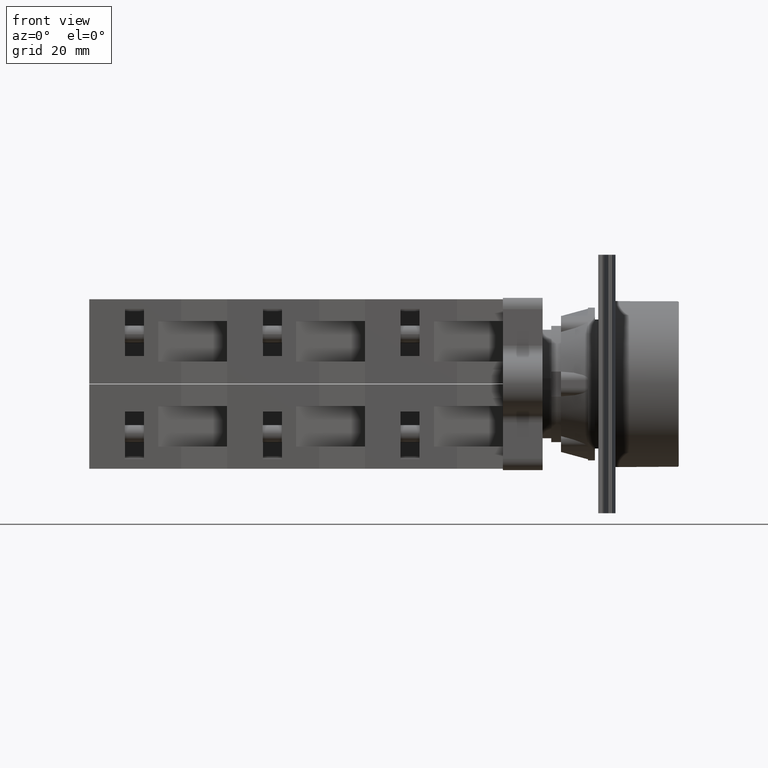
[diagram: clean part render]
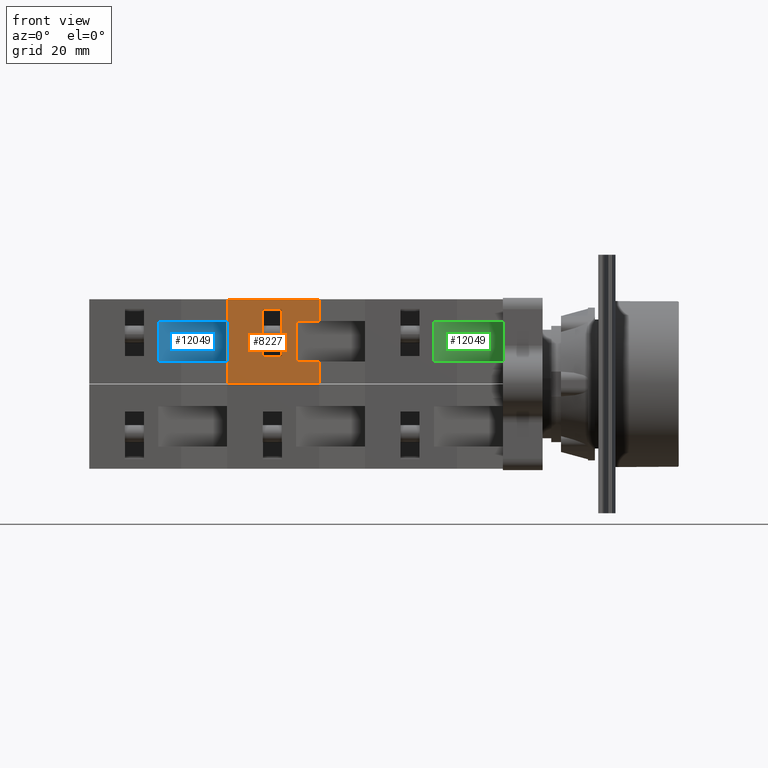
[diagram: same view with three faces highlighted in distinct colors, each labeled with its STEP entity id]
A machine part, front view with three faces highlighted in distinct colors.
Their STEP definitions:

[orange] entity #8227 — the highlighted planar face has unit normal (-0, -1, -0).
#8048=CARTESIAN_POINT('',(-44.936741828918457,7.797073323279618,10.850000000000000));
#8049=VERTEX_POINT('',#8048);
#8058=CARTESIAN_POINT('',(-44.936741828918457,11.797073323279610,10.850000000000000));
#8059=VERTEX_POINT('',#8058);
#8060=CARTESIAN_POINT('',(-44.936741828918457,11.797073323279610,10.850000000000000));
#8061=DIRECTION('',(0.0,-1.0,0.0));
#8062=VECTOR('',#8061,3.999999999999992);
#8063=LINE('',#8060,#8062);
#8064=EDGE_CURVE('',#8059,#8049,#8063,.T.);
#8088=CARTESIAN_POINT('',(-44.936741828918457,11.797073323279610,3.850000000000001));
#8089=VERTEX_POINT('',#8088);
#8105=CARTESIAN_POINT('',(-44.936741828918457,11.797073323279610,3.850000000000001));
#8106=DIRECTION('',(0.0,0.0,1.0));
#8107=VECTOR('',#8106,6.999999999999999);
#8108=LINE('',#8105,#8107);
#8109=EDGE_CURVE('',#8089,#8059,#8108,.T.);
#8121=CARTESIAN_POINT('',(-44.936741828918457,7.797073323279618,3.850000000000000));
#8122=VERTEX_POINT('',#8121);
#8136=CARTESIAN_POINT('',(-44.936741828918457,7.797073323279618,3.850000000000000));
#8137=DIRECTION('',(0.0,1.0,0.0));
#8138=VECTOR('',#8137,3.999999999999992);
#8139=LINE('',#8136,#8138);
#8140=EDGE_CURVE('',#8122,#8089,#8139,.T.);
#8145=CARTESIAN_POINT('',(-44.936741828918457,7.797073323279626,0.0));
#8146=DIRECTION('',(-1.0,0.0,0.0));
#8147=DIRECTION('',(0.0,0.0,1.0));
#8148=AXIS2_PLACEMENT_3D('',#8145,#8146,#8147);
#8149=PLANE('',#8148);
#8150=ORIENTED_EDGE('',*,*,#8140,.T.);
#8151=ORIENTED_EDGE('',*,*,#8109,.T.);
#8152=ORIENTED_EDGE('',*,*,#8064,.T.);
#8153=CARTESIAN_POINT('',(-44.936741828918457,7.797073323279626,14.699999999999999));
#8154=VERTEX_POINT('',#8153);
#8155=CARTESIAN_POINT('',(-44.936741828918457,7.797073323279618,10.850000000000000));
#8156=DIRECTION('',(0.0,0.0,1.0));
#8157=VECTOR('',#8156,3.850000000000000);
#8158=LINE('',#8155,#8157);
#8159=EDGE_CURVE('',#8049,#8154,#8158,.T.);
#8160=ORIENTED_EDGE('',*,*,#8159,.T.);
#8161=CARTESIAN_POINT('',(-44.936741828918471,23.797073323279623,14.699999999999999));
#8162=VERTEX_POINT('',#8161);
#8163=CARTESIAN_POINT('',(-44.936741828918457,7.797073323279626,14.699999999999999));
#8164=DIRECTION('',(0.0,1.0,0.0));
#8165=VECTOR('',#8164,15.999999999999996);
#8166=LINE('',#8163,#8165);
#8167=EDGE_CURVE('',#8154,#8162,#8166,.T.);
#8168=ORIENTED_EDGE('',*,*,#8167,.T.);
#8169=CARTESIAN_POINT('',(-44.936741828918471,23.797073323279623,0.0));
#8170=VERTEX_POINT('',#8169);
#8171=CARTESIAN_POINT('',(-44.936741828918471,23.797073323279623,0.0));
#8172=DIRECTION('',(0.0,0.0,1.0));
#8173=VECTOR('',#8172,14.699999999999999);
#8174=LINE('',#8171,#8173);
#8175=EDGE_CURVE('',#8170,#8162,#8174,.T.);
#8176=ORIENTED_EDGE('',*,*,#8175,.F.);
#8177=CARTESIAN_POINT('',(-44.936741828918457,7.797073323279626,0.0));
#8178=VERTEX_POINT('',#8177);
#8179=CARTESIAN_POINT('',(-44.936741828918457,7.797073323279626,0.0));
#8180=DIRECTION('',(0.0,1.0,0.0));
#8181=VECTOR('',#8180,15.999999999999996);
#8182=LINE('',#8179,#8181);
#8183=EDGE_CURVE('',#8178,#8170,#8182,.T.);
#8184=ORIENTED_EDGE('',*,*,#8183,.F.);
#8185=CARTESIAN_POINT('',(-44.936741828918457,7.797073323279626,0.0));
#8186=DIRECTION('',(0.0,0.0,1.0));
#8187=VECTOR('',#8186,3.850000000000000);
#8188=LINE('',#8185,#8187);
#8189=EDGE_CURVE('',#8178,#8122,#8188,.T.);
#8190=ORIENTED_EDGE('',*,*,#8189,.T.);
#8191=EDGE_LOOP('',(#8150,#8151,#8152,#8160,#8168,#8176,#8184,#8190));
#8192=FACE_OUTER_BOUND('',#8191,.T.);
#8193=CARTESIAN_POINT('',(-44.936741828918457,14.297073323279621,4.800000000000002));
#8194=VERTEX_POINT('',#8193);
#8195=CARTESIAN_POINT('',(-44.936741828918471,17.597073323279623,4.800000000000001));
#8196=VERTEX_POINT('',#8195);
#8197=CARTESIAN_POINT('',(-44.936741828918457,14.297073323279621,4.800000000000002));
#8198=DIRECTION('',(0.0,1.0,0.0));
#8199=VECTOR('',#8198,3.300000000000003);
#8200=LINE('',#8197,#8199);
#8201=EDGE_CURVE('',#8194,#8196,#8200,.T.);
#8202=ORIENTED_EDGE('',*,*,#8201,.T.);
#8203=CARTESIAN_POINT('',(-44.936741828918471,17.597073323279623,13.0));
#8204=VERTEX_POINT('',#8203);
#8205=CARTESIAN_POINT('',(-44.936741828918471,17.597073323279623,4.800000000000001));
#8206=DIRECTION('',(0.0,0.0,1.0));
#8207=VECTOR('',#8206,8.199999999999999);
#8208=LINE('',#8205,#8207);
#8209=EDGE_CURVE('',#8196,#8204,#8208,.T.);
#8210=ORIENTED_EDGE('',*,*,#8209,.T.);
#8211=CARTESIAN_POINT('',(-44.936741828918457,14.297073323279623,13.0));
#8212=VERTEX_POINT('',#8211);
#8213=CARTESIAN_POINT('',(-44.936741828918471,17.597073323279623,13.0));
#8214=DIRECTION('',(0.0,-1.0,0.0));
#8215=VECTOR('',#8214,3.300000000000001);
#8216=LINE('',#8213,#8215);
#8217=EDGE_CURVE('',#8204,#8212,#8216,.T.);
#8218=ORIENTED_EDGE('',*,*,#8217,.T.);
#8219=CARTESIAN_POINT('',(-44.936741828918457,14.297073323279623,13.0));
#8220=DIRECTION('',(0.0,0.0,-1.0));
#8221=VECTOR('',#8220,8.199999999999999);
#8222=LINE('',#8219,#8221);
#8223=EDGE_CURVE('',#8212,#8194,#8222,.T.);
#8224=ORIENTED_EDGE('',*,*,#8223,.T.);
#8225=EDGE_LOOP('',(#8202,#8210,#8218,#8224));
#8226=FACE_BOUND('',#8225,.T.);
#8227=ADVANCED_FACE('',(#8192,#8226),#8149,.T.);

[blue] entity #12049 — the highlighted face is a freeform B-spline surface patch.
#11994=CARTESIAN_POINT('',(-44.936741828918457,11.797073323279610,10.850000000000000));
#11995=VERTEX_POINT('',#11994);
#12002=CARTESIAN_POINT('',(-35.936741828918450,-0.202926676720384,10.850000000000000));
#12003=VERTEX_POINT('',#12002);
#12004=CARTESIAN_POINT('',(-35.936741828918450,-0.202926676720384,10.850000000000000));
#12005=DIRECTION('',(-0.600000000000000,0.800000000000000,0.0));
#12006=VECTOR('',#12005,15.0);
#12007=LINE('',#12004,#12006);
#12008=EDGE_CURVE('',#12003,#11995,#12007,.T.);
#12019=CARTESIAN_POINT('',(-44.936741828918464,11.797073323279616,3.850000000000000));
#12020=CARTESIAN_POINT('',(-44.936741828918464,11.797073323279616,10.850000000000001));
#12021=CARTESIAN_POINT('',(-35.936741828918443,-0.202926676720384,3.850000000000000));
#12022=CARTESIAN_POINT('',(-35.936741828918450,-0.202926676720384,10.850000000000001));
#12023=B_SPLINE_SURFACE_WITH_KNOTS('',1,1,((#12019,#12021),(#12020,#12022)),.UNSPECIFIED.,.F.,.F.,.U.,(2,2),(2,2),(0.0,7.000000000000002),(0.0,15.000000000000012),.UNSPECIFIED.);
#12024=CARTESIAN_POINT('',(-44.936741828918457,11.797073323279610,3.850000000000001));
#12025=VERTEX_POINT('',#12024);
#12026=CARTESIAN_POINT('',(-35.936741828918450,-0.202926676720384,3.850000000000001));
#12027=VERTEX_POINT('',#12026);
#12028=CARTESIAN_POINT('',(-44.936741828918457,11.797073323279610,3.850000000000001));
#12029=DIRECTION('',(0.600000000000000,-0.800000000000000,0.0));
#12030=VECTOR('',#12029,15.0);
#12031=LINE('',#12028,#12030);
#12032=EDGE_CURVE('',#12025,#12027,#12031,.T.);
#12033=ORIENTED_EDGE('',*,*,#12032,.T.);
#12034=CARTESIAN_POINT('',(-35.936741828918450,-0.202926676720384,10.850000000000000));
#12035=DIRECTION('',(0.0,0.0,-1.0));
#12036=VECTOR('',#12035,6.999999999999999);
#12037=LINE('',#12034,#12036);
#12038=EDGE_CURVE('',#12003,#12027,#12037,.T.);
#12039=ORIENTED_EDGE('',*,*,#12038,.F.);
#12040=ORIENTED_EDGE('',*,*,#12008,.T.);
#12041=CARTESIAN_POINT('',(-44.936741828918457,11.797073323279610,3.850000000000001));
#12042=DIRECTION('',(0.0,0.0,1.0));
#12043=VECTOR('',#12042,6.999999999999999);
#12044=LINE('',#12041,#12043);
#12045=EDGE_CURVE('',#12025,#11995,#12044,.T.);
#12046=ORIENTED_EDGE('',*,*,#12045,.F.);
#12047=EDGE_LOOP('',(#12033,#12039,#12040,#12046));
#12048=FACE_OUTER_BOUND('',#12047,.T.);
#12049=ADVANCED_FACE('',(#12048),#12023,.F.);

[green] entity #12049 — the highlighted face is a freeform B-spline surface patch.
#11994=CARTESIAN_POINT('',(-44.936741828918457,11.797073323279610,10.850000000000000));
#11995=VERTEX_POINT('',#11994);
#12002=CARTESIAN_POINT('',(-35.936741828918450,-0.202926676720384,10.850000000000000));
#12003=VERTEX_POINT('',#12002);
#12004=CARTESIAN_POINT('',(-35.936741828918450,-0.202926676720384,10.850000000000000));
#12005=DIRECTION('',(-0.600000000000000,0.800000000000000,0.0));
#12006=VECTOR('',#12005,15.0);
#12007=LINE('',#12004,#12006);
#12008=EDGE_CURVE('',#12003,#11995,#12007,.T.);
#12019=CARTESIAN_POINT('',(-44.936741828918464,11.797073323279616,3.850000000000000));
#12020=CARTESIAN_POINT('',(-44.936741828918464,11.797073323279616,10.850000000000001));
#12021=CARTESIAN_POINT('',(-35.936741828918443,-0.202926676720384,3.850000000000000));
#12022=CARTESIAN_POINT('',(-35.936741828918450,-0.202926676720384,10.850000000000001));
#12023=B_SPLINE_SURFACE_WITH_KNOTS('',1,1,((#12019,#12021),(#12020,#12022)),.UNSPECIFIED.,.F.,.F.,.U.,(2,2),(2,2),(0.0,7.000000000000002),(0.0,15.000000000000012),.UNSPECIFIED.);
#12024=CARTESIAN_POINT('',(-44.936741828918457,11.797073323279610,3.850000000000001));
#12025=VERTEX_POINT('',#12024);
#12026=CARTESIAN_POINT('',(-35.936741828918450,-0.202926676720384,3.850000000000001));
#12027=VERTEX_POINT('',#12026);
#12028=CARTESIAN_POINT('',(-44.936741828918457,11.797073323279610,3.850000000000001));
#12029=DIRECTION('',(0.600000000000000,-0.800000000000000,0.0));
#12030=VECTOR('',#12029,15.0);
#12031=LINE('',#12028,#12030);
#12032=EDGE_CURVE('',#12025,#12027,#12031,.T.);
#12033=ORIENTED_EDGE('',*,*,#12032,.T.);
#12034=CARTESIAN_POINT('',(-35.936741828918450,-0.202926676720384,10.850000000000000));
#12035=DIRECTION('',(0.0,0.0,-1.0));
#12036=VECTOR('',#12035,6.999999999999999);
#12037=LINE('',#12034,#12036);
#12038=EDGE_CURVE('',#12003,#12027,#12037,.T.);
#12039=ORIENTED_EDGE('',*,*,#12038,.F.);
#12040=ORIENTED_EDGE('',*,*,#12008,.T.);
#12041=CARTESIAN_POINT('',(-44.936741828918457,11.797073323279610,3.850000000000001));
#12042=DIRECTION('',(0.0,0.0,1.0));
#12043=VECTOR('',#12042,6.999999999999999);
#12044=LINE('',#12041,#12043);
#12045=EDGE_CURVE('',#12025,#11995,#12044,.T.);
#12046=ORIENTED_EDGE('',*,*,#12045,.F.);
#12047=EDGE_LOOP('',(#12033,#12039,#12040,#12046));
#12048=FACE_OUTER_BOUND('',#12047,.T.);
#12049=ADVANCED_FACE('',(#12048),#12023,.F.);